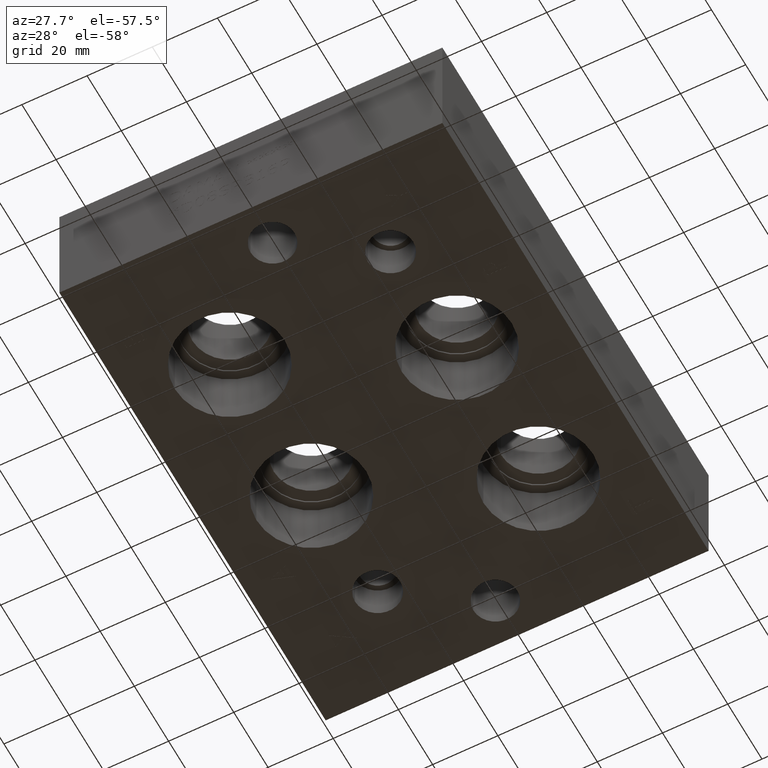
[diagram: clean part render]
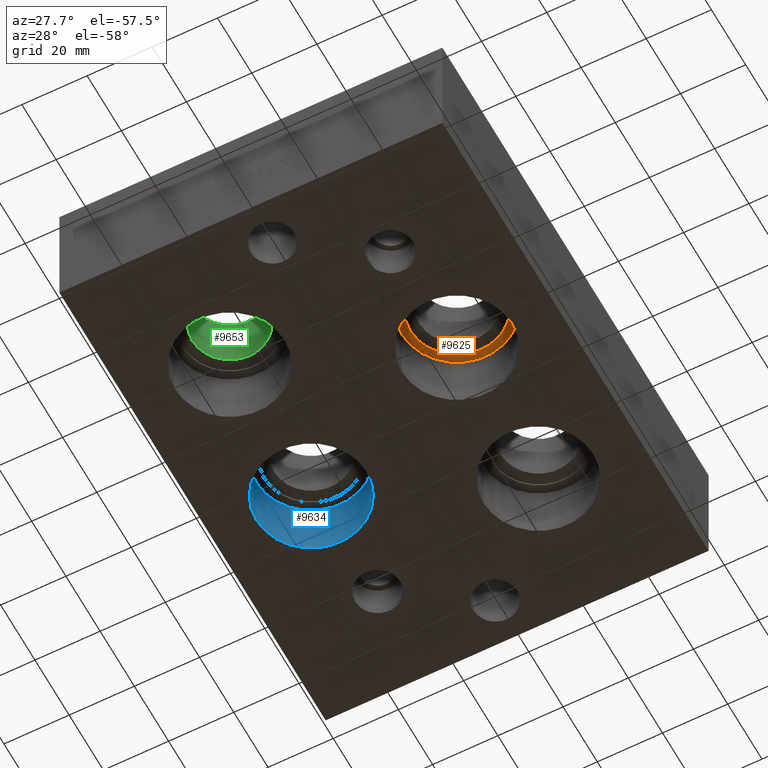
[diagram: same view with three faces highlighted in distinct colors, each labeled with its STEP entity id]
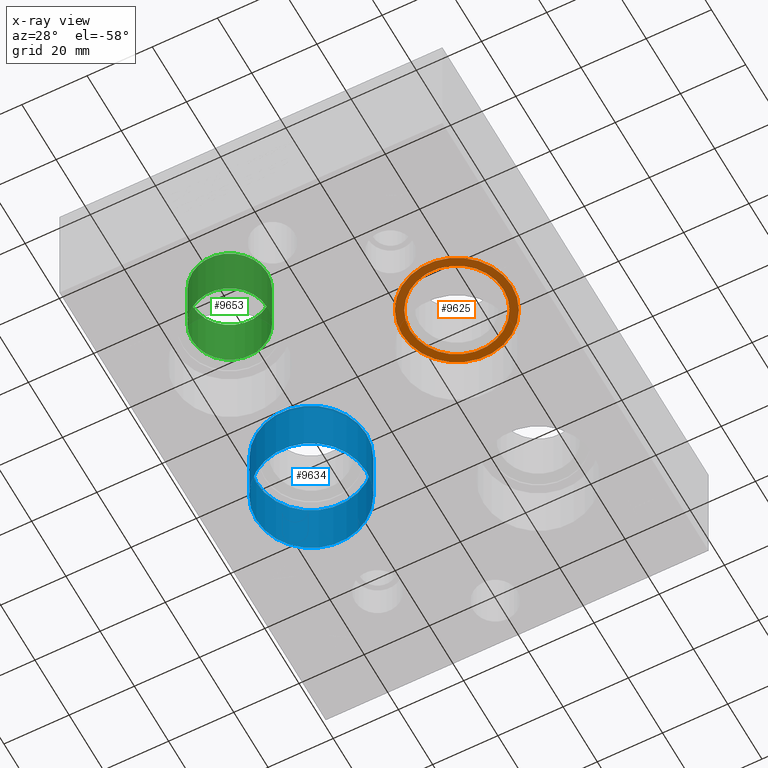
[diagram: x-ray of the same camera — body ghosted, the three highlighted faces saturated]
A machine part, auxiliary view with three faces highlighted in distinct colors.
The next image is the same camera in x-ray (body ghosted, the three faces saturated) — at least one of them is partly hidden behind the body in this view.
Their STEP definitions:

[orange] entity #9625 — the highlighted planar face has unit normal (0, 0, -1).
#77=CIRCLE('',#10013,16.8529);
#78=CIRCLE('',#10014,16.8529);
#79=CIRCLE('',#10015,14.2875);
#225=FACE_BOUND('',#1627,.T.);
#1086=FACE_OUTER_BOUND('',#1626,.T.);
#1626=EDGE_LOOP('',(#8148,#8149));
#1627=EDGE_LOOP('',(#8150));
#4392=VERTEX_POINT('',#16213);
#4393=VERTEX_POINT('',#16214);
#4394=VERTEX_POINT('',#16217);
#5678=EDGE_CURVE('',#4392,#4393,#77,.T.);
#5679=EDGE_CURVE('',#4393,#4392,#78,.T.);
#5680=EDGE_CURVE('',#4394,#4394,#79,.T.);
#8148=ORIENTED_EDGE('',*,*,#5678,.T.);
#8149=ORIENTED_EDGE('',*,*,#5679,.T.);
#8150=ORIENTED_EDGE('',*,*,#5680,.F.);
#8769=PLANE('',#10012);
#9625=ADVANCED_FACE('',(#1086,#225),#8769,.T.);
#10012=AXIS2_PLACEMENT_3D('',#16212,#11684,#11685);
#10013=AXIS2_PLACEMENT_3D('',#16215,#11686,#11687);
#10014=AXIS2_PLACEMENT_3D('',#16216,#11688,#11689);
#10015=AXIS2_PLACEMENT_3D('',#16218,#11690,#11691);
#11684=DIRECTION('center_axis',(0.,0.,-1.));
#11685=DIRECTION('ref_axis',(1.,0.,0.));
#11686=DIRECTION('center_axis',(0.,0.,-1.));
#11687=DIRECTION('ref_axis',(1.,0.,0.));
#11688=DIRECTION('center_axis',(0.,0.,-1.));
#11689=DIRECTION('ref_axis',(1.,0.,0.));
#11690=DIRECTION('center_axis',(0.,0.,-1.));
#11691=DIRECTION('ref_axis',(1.,0.,0.));
#16212=CARTESIAN_POINT('Origin',(87.3252,65.8876,18.9992));
#16213=CARTESIAN_POINT('',(104.1781,65.8876,18.9992));
#16214=CARTESIAN_POINT('',(70.4723,65.8876,18.9992));
#16215=CARTESIAN_POINT('Origin',(87.3252,65.8876,18.9992));
#16216=CARTESIAN_POINT('Origin',(87.3252,65.8876,18.9992));
#16217=CARTESIAN_POINT('',(73.0377,65.8876,18.9992));
#16218=CARTESIAN_POINT('Origin',(87.3252,65.8876,18.9992));

[blue] entity #9634 — the highlighted cylindrical surface (bore or boss wall) has radius 16.8529 mm, axis along (0, 0, -1).
#18=CYLINDRICAL_SURFACE('',#10036,16.8529);
#64=CIRCLE('',#9727,16.8529);
#65=CIRCLE('',#9728,16.8529);
#89=CIRCLE('',#10033,16.8529);
#90=CIRCLE('',#10034,16.8529);
#1095=FACE_OUTER_BOUND('',#1638,.T.);
#1638=EDGE_LOOP('',(#8189,#8190,#8191,#8192,#8193,#8194));
#2617=LINE('',#16258,#3557);
#3557=VECTOR('',#11740,16.8529);
#3675=VERTEX_POINT('',#12384);
#3676=VERTEX_POINT('',#12385);
#4404=VERTEX_POINT('',#16251);
#4405=VERTEX_POINT('',#16252);
#4599=EDGE_CURVE('',#3675,#3676,#64,.T.);
#4600=EDGE_CURVE('',#3676,#3675,#65,.T.);
#5696=EDGE_CURVE('',#4404,#4405,#89,.T.);
#5697=EDGE_CURVE('',#4405,#4404,#90,.T.);
#5699=EDGE_CURVE('',#3676,#4405,#2617,.T.);
#8189=ORIENTED_EDGE('',*,*,#4599,.F.);
#8190=ORIENTED_EDGE('',*,*,#4600,.F.);
#8191=ORIENTED_EDGE('',*,*,#5699,.T.);
#8192=ORIENTED_EDGE('',*,*,#5696,.F.);
#8193=ORIENTED_EDGE('',*,*,#5697,.F.);
#8194=ORIENTED_EDGE('',*,*,#5699,.F.);
#9634=ADVANCED_FACE('',(#1095),#18,.F.);
#9727=AXIS2_PLACEMENT_3D('',#12386,#10296,#10297);
#9728=AXIS2_PLACEMENT_3D('',#12387,#10298,#10299);
#10033=AXIS2_PLACEMENT_3D('',#16253,#11732,#11733);
#10034=AXIS2_PLACEMENT_3D('',#16254,#11734,#11735);
#10036=AXIS2_PLACEMENT_3D('',#16257,#11738,#11739);
#10296=DIRECTION('center_axis',(0.,0.,1.));
#10297=DIRECTION('ref_axis',(1.,0.,0.));
#10298=DIRECTION('center_axis',(0.,0.,1.));
#10299=DIRECTION('ref_axis',(1.,0.,0.));
#11732=DIRECTION('center_axis',(0.,0.,-1.));
#11733=DIRECTION('ref_axis',(1.,0.,0.));
#11734=DIRECTION('center_axis',(0.,0.,-1.));
#11735=DIRECTION('ref_axis',(1.,0.,0.));
#11738=DIRECTION('center_axis',(0.,0.,-1.));
#11739=DIRECTION('ref_axis',(1.,0.,0.));
#11740=DIRECTION('',(0.,0.,1.));
#12384=CARTESIAN_POINT('',(47.0281,89.7128,0.));
#12385=CARTESIAN_POINT('',(13.3223,89.7128,0.));
#12386=CARTESIAN_POINT('Origin',(30.1752,89.7128,0.));
#12387=CARTESIAN_POINT('Origin',(30.1752,89.7128,0.));
#16251=CARTESIAN_POINT('',(47.0281,89.7128,18.9992));
#16252=CARTESIAN_POINT('',(13.3223,89.7128,18.9992));
#16253=CARTESIAN_POINT('Origin',(30.1752,89.7128,18.9992));
#16254=CARTESIAN_POINT('Origin',(30.1752,89.7128,18.9992));
#16257=CARTESIAN_POINT('Origin',(30.1752,89.7128,9.4996));
#16258=CARTESIAN_POINT('',(13.3223,89.7128,9.4996));

[green] entity #9653 — the highlighted cylindrical surface (bore or boss wall) has radius 11.5062 mm, axis along (0, 0, 1).
#31=CYLINDRICAL_SURFACE('',#10083,11.5062);
#93=CIRCLE('',#10040,11.5062);
#120=CIRCLE('',#10084,11.5062);
#121=CIRCLE('',#10085,11.5062);
#1114=FACE_OUTER_BOUND('',#1662,.T.);
#1662=EDGE_LOOP('',(#8278,#8279,#8280,#8281,#8282));
#2631=LINE('',#16351,#3571);
#3571=VECTOR('',#11852,11.5062);
#4409=VERTEX_POINT('',#16265);
#4435=VERTEX_POINT('',#16347);
#4436=VERTEX_POINT('',#16348);
#5703=EDGE_CURVE('',#4409,#4409,#93,.T.);
#5741=EDGE_CURVE('',#4435,#4436,#120,.T.);
#5742=EDGE_CURVE('',#4436,#4435,#121,.T.);
#5743=EDGE_CURVE('',#4436,#4409,#2631,.T.);
#8278=ORIENTED_EDGE('',*,*,#5741,.F.);
#8279=ORIENTED_EDGE('',*,*,#5742,.F.);
#8280=ORIENTED_EDGE('',*,*,#5743,.T.);
#8281=ORIENTED_EDGE('',*,*,#5703,.T.);
#8282=ORIENTED_EDGE('',*,*,#5743,.F.);
#9653=ADVANCED_FACE('',(#1114),#31,.F.);
#10040=AXIS2_PLACEMENT_3D('',#16267,#11749,#11750);
#10083=AXIS2_PLACEMENT_3D('',#16346,#11846,#11847);
#10084=AXIS2_PLACEMENT_3D('',#16349,#11848,#11849);
#10085=AXIS2_PLACEMENT_3D('',#16350,#11850,#11851);
#11749=DIRECTION('center_axis',(0.,0.,-1.));
#11750=DIRECTION('ref_axis',(1.,0.,0.));
#11846=DIRECTION('center_axis',(0.,0.,1.));
#11847=DIRECTION('ref_axis',(1.,0.,0.));
#11848=DIRECTION('center_axis',(0.,0.,-1.));
#11849=DIRECTION('ref_axis',(1.,0.,0.));
#11850=DIRECTION('center_axis',(0.,0.,-1.));
#11851=DIRECTION('ref_axis',(1.,0.,0.));
#11852=DIRECTION('',(0.,0.,-1.));
#16265=CARTESIAN_POINT('',(18.669,42.0624,20.5315304125646));
#16267=CARTESIAN_POINT('Origin',(30.1752,42.0624,20.5315304125646));
#16346=CARTESIAN_POINT('Origin',(30.1752,42.0624,-160.534252459137));
#16347=CARTESIAN_POINT('',(41.6814,42.0624,38.1));
#16348=CARTESIAN_POINT('',(18.669,42.0624,38.1));
#16349=CARTESIAN_POINT('Origin',(30.1752,42.0624,38.1));
#16350=CARTESIAN_POINT('Origin',(30.1752,42.0624,38.1));
#16351=CARTESIAN_POINT('',(18.669,42.0624,-160.534252459137));